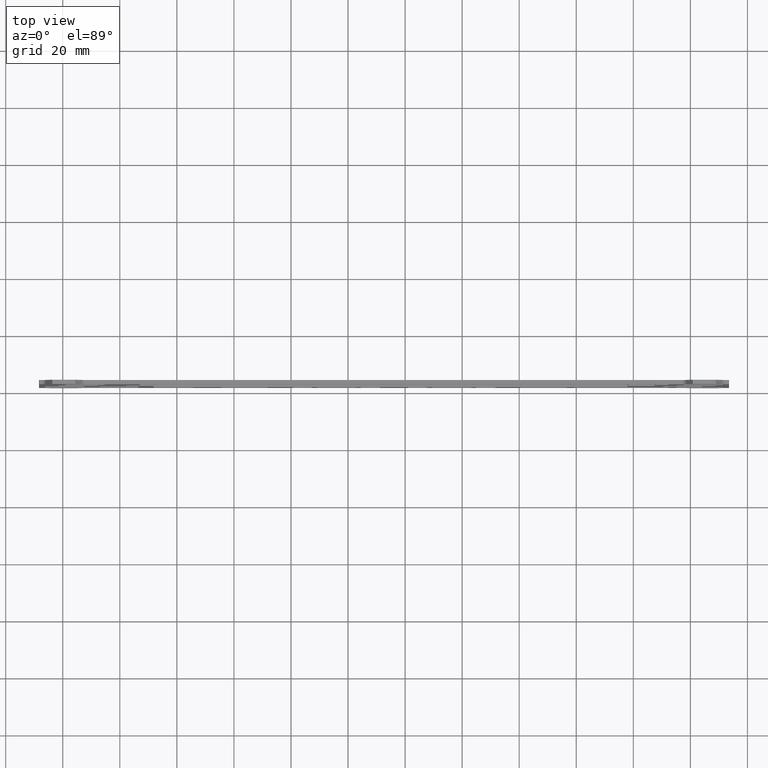
[diagram: clean part render]
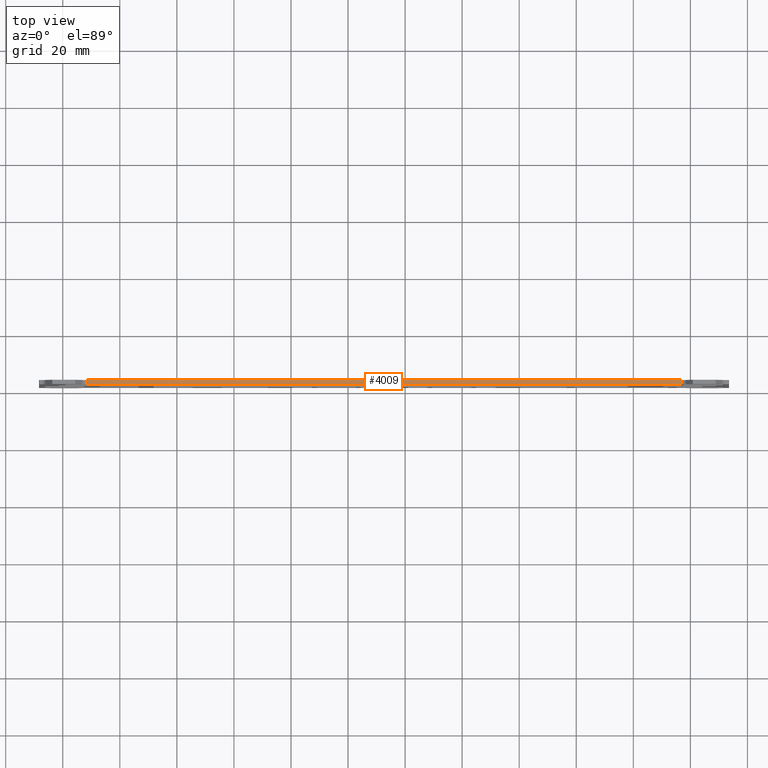
[diagram: same view with one face highlighted and labeled with its STEP entity id]
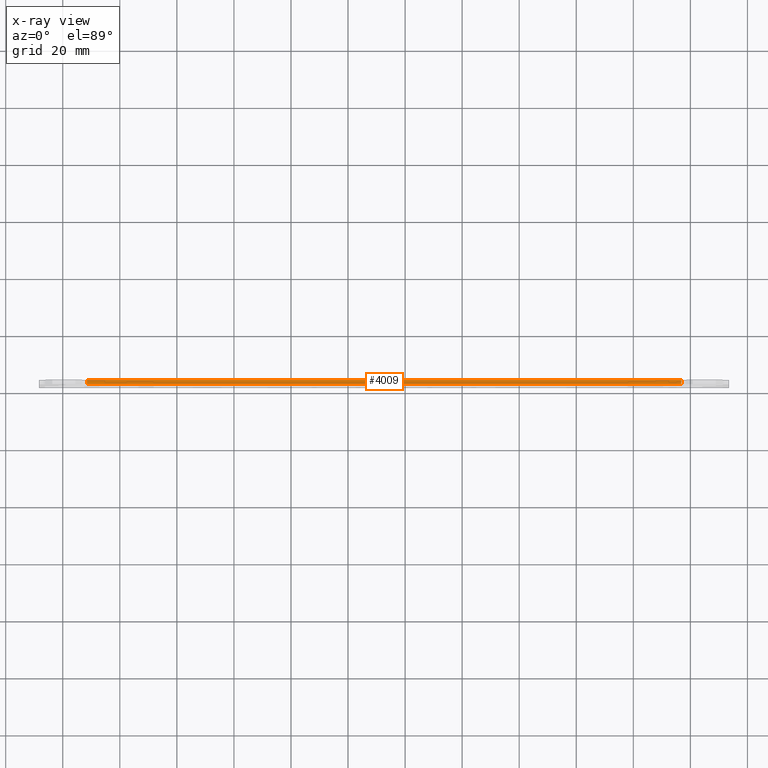
[diagram: x-ray of the same camera — body ghosted, the highlighted face saturated]
A machine part, top view. The second image highlights one B-rep face of the part: STEP entity #4009.
The next image is the same camera in x-ray: the body ghosted, the highlighted face saturated — about 0% of this face is hidden behind the body in this view.
In plain terms, the highlighted planar face has unit normal (-0, 0, -1).
Its self-contained STEP definition (entity closure, byte-faithful):
#363=FACE_OUTER_BOUND('',#569,.T.);
#569=EDGE_LOOP('',(#2735,#2736,#2737,#2738));
#841=LINE('',#5948,#1261);
#842=LINE('',#5951,#1262);
#843=LINE('',#5953,#1263);
#844=LINE('',#5954,#1264);
#1261=VECTOR('',#4723,10.);
#1262=VECTOR('',#4726,10.);
#1263=VECTOR('',#4727,10.);
#1264=VECTOR('',#4728,10.);
#1675=VERTEX_POINT('',#5944);
#1676=VERTEX_POINT('',#5946);
#1677=VERTEX_POINT('',#5950);
#1678=VERTEX_POINT('',#5952);
#2103=EDGE_CURVE('',#1676,#1675,#841,.T.);
#2104=EDGE_CURVE('',#1675,#1677,#842,.T.);
#2105=EDGE_CURVE('',#1678,#1676,#843,.T.);
#2106=EDGE_CURVE('',#1678,#1677,#844,.T.);
#2735=ORIENTED_EDGE('',*,*,#2104,.F.);
#2736=ORIENTED_EDGE('',*,*,#2103,.F.);
#2737=ORIENTED_EDGE('',*,*,#2105,.F.);
#2738=ORIENTED_EDGE('',*,*,#2106,.T.);
#3892=PLANE('',#4243);
#4009=ADVANCED_FACE('',(#363),#3892,.F.);
#4243=AXIS2_PLACEMENT_3D('',#5949,#4724,#4725);
#4723=DIRECTION('',(0.,-1.,0.));
#4724=DIRECTION('center_axis',(-1.70479958615992E-16,0.,-1.));
#4725=DIRECTION('ref_axis',(1.,1.06615335895857E-32,-1.70479958615992E-16));
#4726=DIRECTION('',(-1.,-1.06615335895857E-32,1.70479958615992E-16));
#4727=DIRECTION('',(1.,1.06615335895857E-32,-1.70479958615992E-16));
#4728=DIRECTION('',(0.,-1.,0.));
#5944=CARTESIAN_POINT('',(196.80364973081,-18.175,130.35));
#5946=CARTESIAN_POINT('',(196.80364973081,-16.675,130.35));
#5948=CARTESIAN_POINT('',(196.80364973081,-16.675,130.35));
#5949=CARTESIAN_POINT('Origin',(-11.5911497308105,-16.675,130.35));
#5950=CARTESIAN_POINT('',(-11.5911497308105,-18.175,130.35));
#5951=CARTESIAN_POINT('',(40.5075501345948,-18.175,130.35));
#5952=CARTESIAN_POINT('',(-11.5911497308105,-16.675,130.35));
#5953=CARTESIAN_POINT('',(40.5075501345948,-16.675,130.35));
#5954=CARTESIAN_POINT('',(-11.5911497308105,-16.675,130.35));